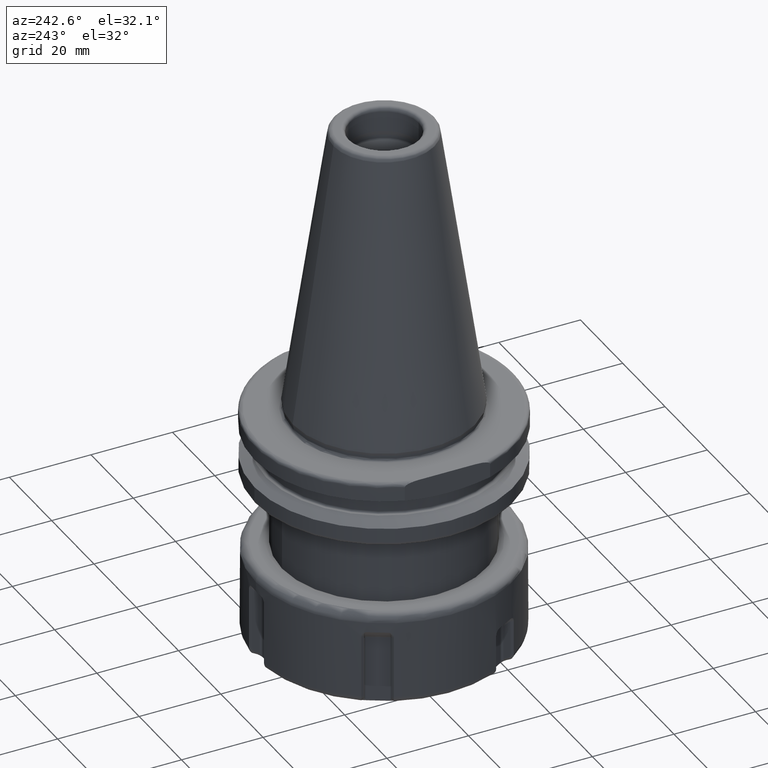
[diagram: clean part render]
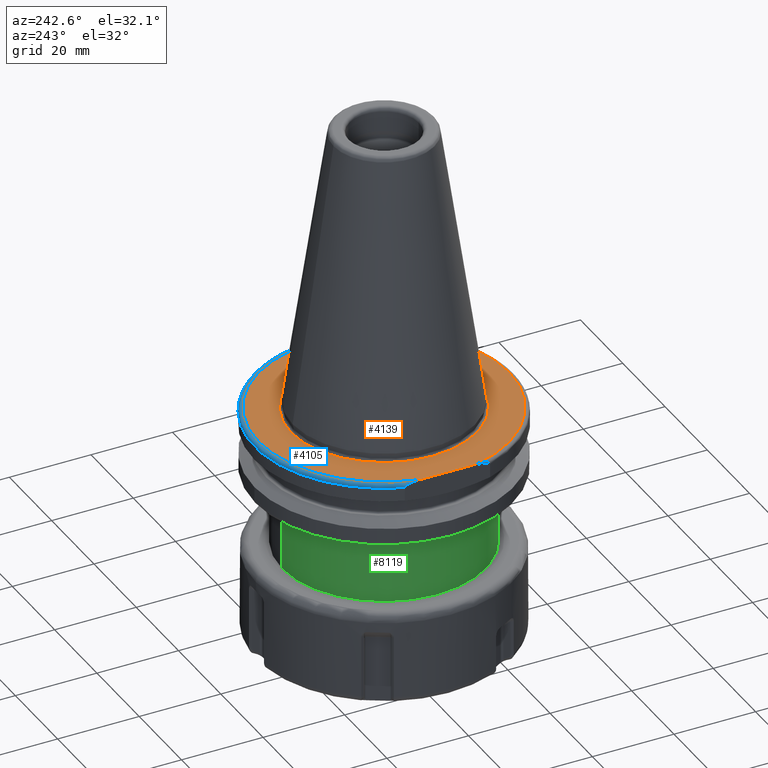
[diagram: same view with three faces highlighted in distinct colors, each labeled with its STEP entity id]
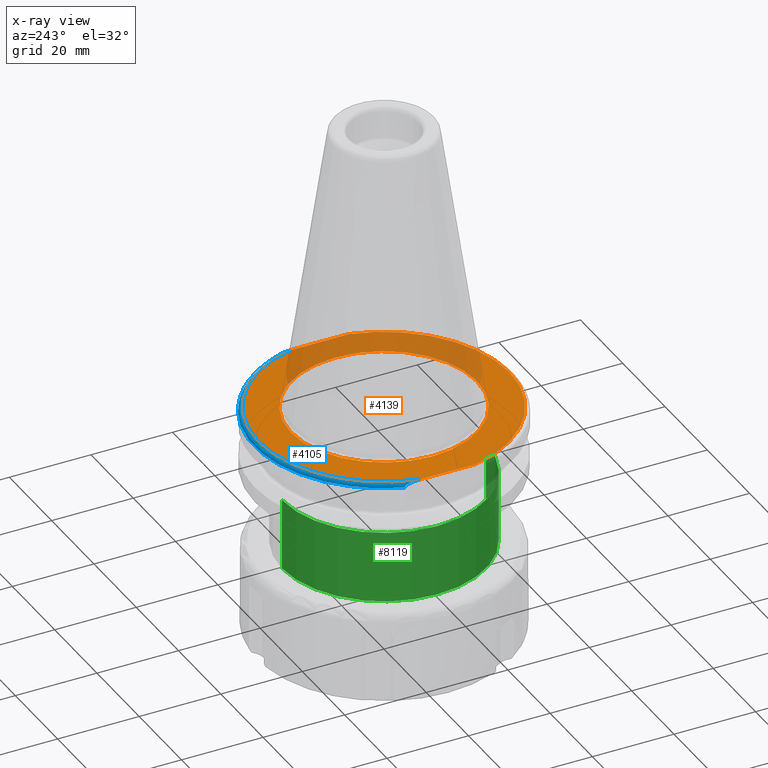
[diagram: x-ray of the same camera — body ghosted, the three highlighted faces saturated]
A machine part, auxiliary view with three faces highlighted in distinct colors.
The next image is the same camera in x-ray (body ghosted, the three faces saturated) — at least one of them is partly hidden behind the body in this view.
Their STEP definitions:

[orange] entity #4139 — the highlighted planar face has unit normal (0, 0, -1).
#203=CARTESIAN_POINT('',(0,0,15.9));
#204=DIRECTION('',(0,0,1));
#205=DIRECTION('',(-0.9748172217709,-0.2230053455387,0));
#206=AXIS2_PLACEMENT_3D('',#203,#204,#205);
#228=CARTESIAN_POINT('',(0,0,15.9));
#229=DIRECTION('',(0,0,1));
#230=DIRECTION('',(0.9748172217709,0.2230053455387,0));
#231=AXIS2_PLACEMENT_3D('',#228,#229,#230);
#279=DIRECTION('',(0,1,0));
#280=VECTOR('',#279,13.72597901791);
#281=CARTESIAN_POINT('',(-30,-6.862989508953,15.9));
#282=LINE('',#281,#280);
#283=DIRECTION('',(0,-1,0));
#284=VECTOR('',#283,13.72597901791);
#285=CARTESIAN_POINT('',(30,6.862989508953,15.9));
#286=LINE('',#285,#284);
#297=CARTESIAN_POINT('',(0,0,15.9));
#298=DIRECTION('',(0,0,1));
#299=DIRECTION('',(0,1,0));
#300=AXIS2_PLACEMENT_3D('',#297,#298,#299);
#302=CARTESIAN_POINT('',(0,0,15.9));
#303=DIRECTION('',(0,0,-1));
#304=DIRECTION('',(0,1,0));
#305=AXIS2_PLACEMENT_3D('',#302,#303,#304);
#3334=CARTESIAN_POINT('',(0,22.79999903812,15.9));
#3336=VERTEX_POINT('',#3334);
#3364=CARTESIAN_POINT('',(0,-22.79999903812,15.9));
#3366=VERTEX_POINT('',#3364);
#3426=CARTESIAN_POINT('',(-30,-6.862989508953,15.9));
#3427=CARTESIAN_POINT('',(-30,6.862989508953,15.9));
#3428=VERTEX_POINT('',#3426);
#3429=VERTEX_POINT('',#3427);
#3430=CARTESIAN_POINT('',(30,6.862989508953,15.9));
#3431=CARTESIAN_POINT('',(30,-6.862989508953,15.9));
#3432=VERTEX_POINT('',#3430);
#3433=VERTEX_POINT('',#3431);
#4121=CARTESIAN_POINT('',(0,0,15.9));
#4122=DIRECTION('',(0,0,-1));
#4123=DIRECTION('',(0,-1,0));
#4124=AXIS2_PLACEMENT_3D('',#4121,#4122,#4123);
#4125=PLANE('',#4124);
#4126=ORIENTED_EDGE('',*,*,#4111,.T.);
#4127=ORIENTED_EDGE('',*,*,#4096,.F.);
#4129=ORIENTED_EDGE('',*,*,#4128,.T.);
#4130=ORIENTED_EDGE('',*,*,#4084,.F.);
#4131=EDGE_LOOP('',(#4126,#4127,#4129,#4130));
#4132=FACE_OUTER_BOUND('',#4131,.F.);
#4134=ORIENTED_EDGE('',*,*,#4133,.T.);
#4136=ORIENTED_EDGE('',*,*,#4135,.F.);
#4137=EDGE_LOOP('',(#4134,#4136));
#4138=FACE_BOUND('',#4137,.F.);
#4139=ADVANCED_FACE('',(#4132,#4138),#4125,.F.);
#207=CIRCLE('',#206,30.775);
#232=CIRCLE('',#231,30.775);
#301=CIRCLE('',#300,22.79999903812);
#306=CIRCLE('',#305,22.79999903812);
#4084=EDGE_CURVE('',#3428,#3433,#207,.T.);
#4096=EDGE_CURVE('',#3432,#3429,#232,.T.);
#4111=EDGE_CURVE('',#3428,#3429,#282,.T.);
#4128=EDGE_CURVE('',#3432,#3433,#286,.T.);
#4133=EDGE_CURVE('',#3336,#3366,#301,.T.);
#4135=EDGE_CURVE('',#3336,#3366,#306,.T.);

[blue] entity #4105 — the highlighted toroidal blend (fillet) surface has major radius 30.775 mm and minor (blend) radius 1 mm.
#228=CARTESIAN_POINT('',(0,0,15.9));
#229=DIRECTION('',(0,0,1));
#230=DIRECTION('',(0.9748172217709,0.2230053455387,0));
#231=AXIS2_PLACEMENT_3D('',#228,#229,#230);
#233=CARTESIAN_POINT('',(-30,10.47141943578,14.9));
#234=CARTESIAN_POINT('',(-30,10.47141943578,14.94227247361));
#235=CARTESIAN_POINT('',(-30,10.45521162685,15.02393277087));
#236=CARTESIAN_POINT('',(-30,10.39094626118,15.13767549868));
#237=CARTESIAN_POINT('',(-30,10.29192800665,15.24327188324));
#238=CARTESIAN_POINT('',(-30,10.16758319707,15.33740692404));
#239=CARTESIAN_POINT('',(-30,10.02073419657,15.42285704999));
#240=CARTESIAN_POINT('',(-30,9.850918019308,15.50138539066));
#241=CARTESIAN_POINT('',(-30,9.660077458307,15.57274927715));
#242=CARTESIAN_POINT('',(-30,9.451253976308,15.63654849462));
#243=CARTESIAN_POINT('',(-30,9.223844969027,15.69349893698));
#244=CARTESIAN_POINT('',(-30,8.974575891506,15.74431356044));
#245=CARTESIAN_POINT('',(-30,8.701405086466,15.78889835479));
#246=CARTESIAN_POINT('',(-30,8.402200252931,15.82692295684));
#247=CARTESIAN_POINT('',(-30,8.075364171501,15.85784249719));
#248=CARTESIAN_POINT('',(-30,7.716290962790,15.88121036644));
#249=CARTESIAN_POINT('',(-30,7.317737860931,15.89630842512));
#250=CARTESIAN_POINT('',(-30,7.019634739948,15.9));
#251=CARTESIAN_POINT('',(-30,6.862989508953,15.9));
#253=CARTESIAN_POINT('',(0,0,14.9));
#254=DIRECTION('',(0,0,-1));
#255=DIRECTION('',(-0.9441384736428,0.3295489987656,0));
#256=AXIS2_PLACEMENT_3D('',#253,#254,#255);
#258=CARTESIAN_POINT('',(30,6.862989508953,15.9));
#259=CARTESIAN_POINT('',(30,7.003242435703,15.9));
#260=CARTESIAN_POINT('',(30,7.272511281998,15.89705375024));
#261=CARTESIAN_POINT('',(30,7.641894942409,15.88455893822));
#262=CARTESIAN_POINT('',(30,7.979185734685,15.86484240429));
#263=CARTESIAN_POINT('',(30,8.286804819624,15.83871233131));
#264=CARTESIAN_POINT('',(30,8.567661495597,15.80684445352));
#265=CARTESIAN_POINT('',(30,8.824822859175,15.76970149981));
#266=CARTESIAN_POINT('',(30,9.061359964762,15.72749193008));
#267=CARTESIAN_POINT('',(30,9.280511276702,15.68001774056));
#268=CARTESIAN_POINT('',(30,9.484531348494,15.62689990110));
#269=CARTESIAN_POINT('',(30,9.678314266874,15.56632096675));
#270=CARTESIAN_POINT('',(30,9.861436478509,15.49687875811));
#271=CARTESIAN_POINT('',(30,10.02821082762,15.41894930530));
#272=CARTESIAN_POINT('',(30,10.17428042653,15.33299926240));
#273=CARTESIAN_POINT('',(30,10.29683103190,15.23869690816));
#274=CARTESIAN_POINT('',(30,10.39268617079,15.13514943272));
#275=CARTESIAN_POINT('',(30,10.45609632479,15.02135338662));
#276=CARTESIAN_POINT('',(30,10.47141943578,14.94130336085));
#277=CARTESIAN_POINT('',(30,10.47141943578,14.9));
#3427=CARTESIAN_POINT('',(-30,6.862989508953,15.9));
#3429=VERTEX_POINT('',#3427);
#3430=CARTESIAN_POINT('',(30,6.862989508953,15.9));
#3432=VERTEX_POINT('',#3430);
#3446=CARTESIAN_POINT('',(30,10.47141943578,14.9));
#3447=VERTEX_POINT('',#3446);
#3448=CARTESIAN_POINT('',(-30,10.47141943578,14.9));
#3449=VERTEX_POINT('',#3448);
#4091=CARTESIAN_POINT('',(0,0,14.9));
#4092=DIRECTION('',(0,0,-1));
#4093=DIRECTION('',(-0.004960996127064,-0.9999876941830,0));
#4094=AXIS2_PLACEMENT_3D('',#4091,#4092,#4093);
#4095=TOROIDAL_SURFACE('',#4094,30.775,1);
#4097=ORIENTED_EDGE('',*,*,#4096,.T.);
#4099=ORIENTED_EDGE('',*,*,#4098,.F.);
#4100=ORIENTED_EDGE('',*,*,#4047,.T.);
#4102=ORIENTED_EDGE('',*,*,#4101,.F.);
#4103=EDGE_LOOP('',(#4097,#4099,#4100,#4102));
#4104=FACE_OUTER_BOUND('',#4103,.F.);
#4105=ADVANCED_FACE('',(#4104),#4095,.T.);
#232=CIRCLE('',#231,30.775);
#252=B_SPLINE_CURVE_WITH_KNOTS('',3,(#233,#234,#235,#236,#237,#238,#239,#240,
#241,#242,#243,#244,#245,#246,#247,#248,#249,#250,#251),.UNSPECIFIED.,.F.,.F.,
(4,1,1,1,1,1,1,1,1,1,1,1,1,1,1,1,4),(0,0.0625,0.125,0.1875,0.25,
0.3125,0.375,0.4375,0.5,0.5625,0.625,0.6875,0.75,0.8125,
0.875,0.9375,1),.UNSPECIFIED.);
#257=CIRCLE('',#256,31.775);
#278=B_SPLINE_CURVE_WITH_KNOTS('',3,(#258,#259,#260,#261,#262,#263,#264,#265,
#266,#267,#268,#269,#270,#271,#272,#273,#274,#275,#276,#277),.UNSPECIFIED.,.F.,
.F.,(4,1,1,1,1,1,1,1,1,1,1,1,1,1,1,1,1,4),(0,0.05882352941176,
0.1176470588235,0.1764705882353,0.2352941176471,0.2941176470588,
0.3529411764706,0.4117647058824,0.4705882352941,0.5294117647059,
0.5882352941176,0.6470588235294,0.7058823529412,0.7647058823529,
0.8235294117647,0.8823529411765,0.9411764705882,1),.UNSPECIFIED.);
#4047=EDGE_CURVE('',#3449,#3447,#257,.T.);
#4096=EDGE_CURVE('',#3432,#3429,#232,.T.);
#4098=EDGE_CURVE('',#3449,#3429,#252,.T.);
#4101=EDGE_CURVE('',#3432,#3447,#278,.T.);

[green] entity #8119 — the highlighted cylindrical surface (partial cylindrical patch) has radius 25 mm, axis along (0, 0, -1).
#2525=CARTESIAN_POINT('',(0,0,-0.8));
#2526=DIRECTION('',(0,0,-1));
#2527=DIRECTION('',(0,-1,0));
#2528=AXIS2_PLACEMENT_3D('',#2525,#2526,#2527);
#2530=DIRECTION('',(-0.0000000000001783214009392,0,1));
#2531=VECTOR('',#2530,17.60037512210);
#2532=CARTESIAN_POINT('',(0,-25,-18.40037512210));
#2533=LINE('',#2532,#2531);
#2534=CARTESIAN_POINT('',(0,0,-18.40037512210));
#2535=DIRECTION('',(0,0,-1));
#2536=DIRECTION('',(0,-1,0));
#2537=AXIS2_PLACEMENT_3D('',#2534,#2535,#2536);
#2539=DIRECTION('',(0.0000000000001786043521655,0,1));
#2540=VECTOR('',#2539,17.60037512210);
#2541=CARTESIAN_POINT('',(0,25,-18.40037512210));
#2542=LINE('',#2541,#2540);
#3823=CARTESIAN_POINT('',(0,25,-18.40037512210));
#3824=CARTESIAN_POINT('',(0,-25,-18.40037512210));
#3825=VERTEX_POINT('',#3823);
#3826=VERTEX_POINT('',#3824);
#3835=CARTESIAN_POINT('',(0,-25,-0.8));
#3836=CARTESIAN_POINT('',(0,25,-0.8));
#3837=VERTEX_POINT('',#3835);
#3838=VERTEX_POINT('',#3836);
#8107=CARTESIAN_POINT('',(0,0,17.195));
#8108=DIRECTION('',(0,0,-1));
#8109=DIRECTION('',(0,-1,0));
#8110=AXIS2_PLACEMENT_3D('',#8107,#8108,#8109);
#8111=CYLINDRICAL_SURFACE('',#8110,25);
#8112=ORIENTED_EDGE('',*,*,#8101,.F.);
#8113=ORIENTED_EDGE('',*,*,#8075,.F.);
#8115=ORIENTED_EDGE('',*,*,#8114,.T.);
#8116=ORIENTED_EDGE('',*,*,#8072,.T.);
#8117=EDGE_LOOP('',(#8112,#8113,#8115,#8116));
#8118=FACE_OUTER_BOUND('',#8117,.F.);
#8119=ADVANCED_FACE('',(#8118),#8111,.T.);
#2529=CIRCLE('',#2528,25);
#2538=CIRCLE('',#2537,25);
#8072=EDGE_CURVE('',#3825,#3838,#2542,.T.);
#8075=EDGE_CURVE('',#3826,#3837,#2533,.T.);
#8101=EDGE_CURVE('',#3837,#3838,#2529,.T.);
#8114=EDGE_CURVE('',#3826,#3825,#2538,.T.);